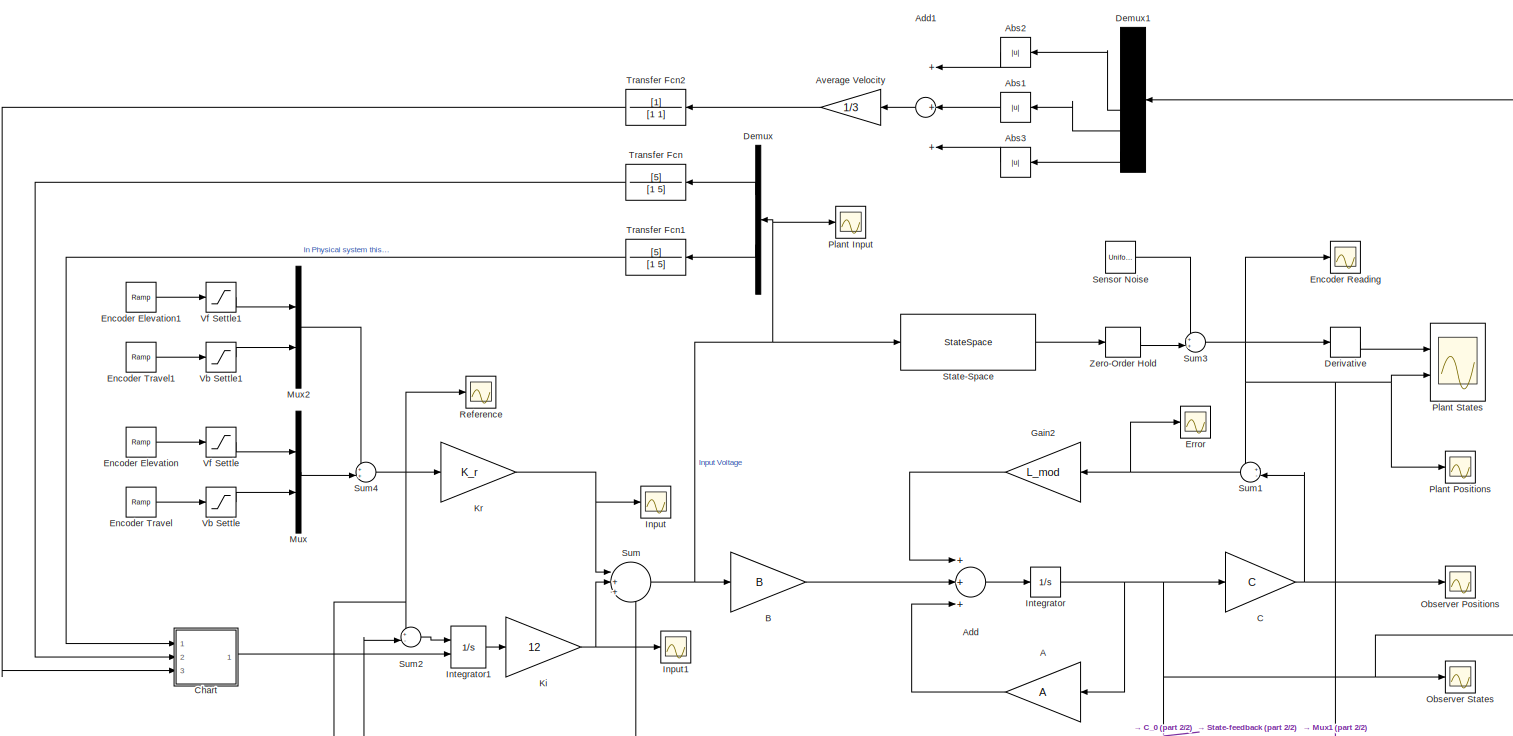
[diagram: root canvas - part 1/2, full width, middle band]
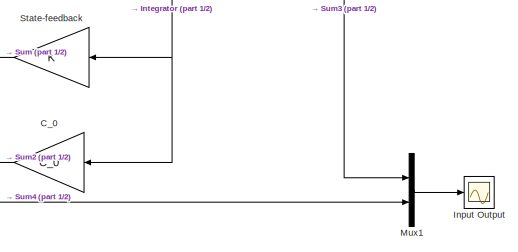
[diagram: root canvas - part 2/2, bottom right region]
MODEL slx_68eb5c459e60
KIND model
CONFIG AbsTol = auto
CONFIG FixedStep = auto
CONFIG MaxStep = auto
CONFIG MinStep = auto
CONFIG RelTol = 1e-3
CONFIG SampleTimeConstraint = Unconstrained
CONFIG Solver = ode45
CONFIG SolverMode = Auto
CONFIG SolverName = ode45
CONFIG StartTime = 0.0
CONFIG StopTime = 80
BLOCK [Gain] A
  Gain = A
  Multiplication = Matrix(K*u)
  OutDataTypeStr = Inherit: Inherit via internal rule
  ParamDataTypeStr = Inherit: Inherit via internal rule
  SaturateOnIntegerOverflow = off
BLOCK [Abs] Abs1
  SaturateOnIntegerOverflow = off
BLOCK [Abs] Abs2
  SaturateOnIntegerOverflow = off
BLOCK [Abs] Abs3
  SaturateOnIntegerOverflow = off
BLOCK [Sum] Add
  InputSameDT = off
  Inputs = +++
  OutDataTypeStr = Inherit: Inherit via internal rule
  Ports = [3, 1]
  SaturateOnIntegerOverflow = off
BLOCK [Sum] Add1
  InputSameDT = off
  Inputs = +++
  OutDataTypeStr = Inherit: Inherit via internal rule
  Ports = [3, 1]
  SaturateOnIntegerOverflow = off
BLOCK [Gain] Average Velocity
  Gain = 1/3
  OutDataTypeStr = Inherit: Inherit via internal rule
  ParamDataTypeStr = Inherit: Inherit via internal rule
  SaturateOnIntegerOverflow = off
BLOCK [Gain] B
  Gain = B
  Multiplication = Matrix(K*u)
  OutDataTypeStr = Inherit: Inherit via internal rule
  ParamDataTypeStr = Inherit: Inherit via internal rule
  SaturateOnIntegerOverflow = off
BLOCK [Gain] C
  Gain = C
  Multiplication = Matrix(K*u)
  OutDataTypeStr = Inherit: Inherit via internal rule
  ParamDataTypeStr = Inherit: Inherit via internal rule
  SaturateOnIntegerOverflow = off
BLOCK [Gain] C_0
  Gain = C_0
  Multiplication = Matrix(K*u)
  OutDataTypeStr = Inherit: Inherit via internal rule
  ParamDataTypeStr = Inherit: Inherit via internal rule
  SaturateOnIntegerOverflow = off
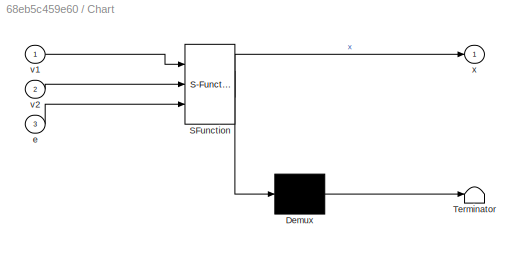
BLOCK [SubSystem] Chart
  ErrorFcn = Stateflow.Translate.translate
  PermitHierarchicalResolution = ExplicitOnly
  Ports = [3, 1]
  RequestExecContextInheritance = off
  SFBlockType = Chart
  TreatAsAtomicUnit = on
BLOCK [Demux] Chart/ Demux 
  Outputs = 1
  Ports = [1, 1]
BLOCK [S-Function] Chart/ SFunction 
  EnableBusSupport = on
  FunctionName = sf_sfun
  PortCounts = [3 2]
  Ports = [3, 2]
  Tag = Stateflow S-Function Helicopter_Simulink_Model 3
BLOCK [Terminator] Chart/ Terminator 
BLOCK [Inport] Chart/e
  IconDisplay = Port number
  Port = 3
BLOCK [Inport] Chart/v1
  IconDisplay = Port number
BLOCK [Inport] Chart/v2
  IconDisplay = Port number
  Port = 2
BLOCK [Outport] Chart/x
  IconDisplay = Port number
BLOCK [Demux] Demux
  DisplayOption = bar
  Outputs = 2
  Ports = [1, 2]
BLOCK [Demux] Demux1
  DisplayOption = bar
  Outputs = 6
  Ports = [1, 6]
BLOCK [Derivative] Derivative
BLOCK [Reference] Encoder Elevation  REF=simulink/Sources/Ramp
  Ports = [0, 1]
  SourceBlock = simulink/Sources/Ramp
  SourceType = Ramp
  VectorParams1D = on
  X0 = 0.4995
  slope = -0.125
  start = 30
BLOCK [Reference] Encoder Elevation1  REF=simulink/Sources/Ramp
  Ports = [0, 1]
  SourceBlock = simulink/Sources/Ramp
  SourceType = Ramp
  VectorParams1D = on
  X0 = 0
  slope = 0.125
  start = 0
BLOCK [Scope] Encoder Reading
  Floating = off
  LimitDataPoints = off
  NumInputPorts = 1
  Ports = [1]
  SaveName = ScopeData6
BLOCK [Reference] Encoder Travel  REF=simulink/Sources/Ramp
  Ports = [0, 1]
  SourceBlock = simulink/Sources/Ramp
  SourceType = Ramp
  VectorParams1D = on
  X0 = 0
  slope = 0
  start = 0
BLOCK [Reference] Encoder Travel1  REF=simulink/Sources/Ramp
  Ports = [0, 1]
  SourceBlock = simulink/Sources/Ramp
  SourceType = Ramp
  VectorParams1D = on
  X0 = 0
  slope = 0
  start = 0
BLOCK [Scope] Error
  Floating = off
  LimitDataPoints = off
  NumInputPorts = 1
  Ports = [1]
  SaveName = ScopeData3
BLOCK [Gain] Gain2
  Gain = L_mod
  Multiplication = Matrix(K*u)
  OutDataTypeStr = Inherit: Inherit via internal rule
  ParamDataTypeStr = Inherit: Inherit via internal rule
  SaturateOnIntegerOverflow = off
BLOCK [Scope] Input
  Floating = off
  NumInputPorts = 1
  Ports = [1]
BLOCK [Scope] Input Output
  Floating = off
  LimitDataPoints = off
  NumInputPorts = 1
  Ports = [1]
  SaveName = ScopeData7
BLOCK [Scope] Input1
  Floating = off
  LimitDataPoints = off
  NumInputPorts = 1
  Ports = [1]
  SaveName = ScopeData11
BLOCK [Integrator] Integrator
  Ports = [1, 1]
BLOCK [Integrator] Integrator1
  ExternalReset = rising
  Ports = [2, 1]
BLOCK [Gain] Ki
  Gain = 12
  Multiplication = Matrix(K*u)
  OutDataTypeStr = Inherit: Inherit via internal rule
  ParamDataTypeStr = Inherit: Inherit via internal rule
  SaturateOnIntegerOverflow = off
BLOCK [Gain] Kr
  Gain = K_r
  Multiplication = Matrix(K*u)
  OutDataTypeStr = Inherit: Inherit via internal rule
  ParamDataTypeStr = Inherit: Inherit via internal rule
  SaturateOnIntegerOverflow = off
BLOCK [Mux] Mux
  DisplayOption = bar
  Inputs = 2
  Ports = [2, 1]
BLOCK [Mux] Mux1
  DisplayOption = bar
  Inputs = 2
  Ports = [2, 1]
BLOCK [Mux] Mux2
  DisplayOption = bar
  Inputs = 2
  Ports = [2, 1]
BLOCK [Scope] Observer Positions
  Floating = off
  LimitDataPoints = off
  NumInputPorts = 1
  Ports = [1]
  SaveName = ScopeData4
BLOCK [Scope] Observer States
  Floating = off
  LimitDataPoints = off
  NumInputPorts = 1
  Ports = [1]
  SaveName = ScopeData2
BLOCK [Scope] Plant Input
  Floating = off
  LimitDataPoints = off
  NumInputPorts = 1
  Ports = [1]
  SaveName = ScopeData9
BLOCK [Scope] Plant Positions
  Floating = off
  LimitDataPoints = off
  NumInputPorts = 1
  Ports = [1]
  SaveName = ScopeData5
BLOCK [Scope] Plant States
  Floating = off
  LimitDataPoints = off
  NumInputPorts = 2
  Ports = [2]
  SaveName = ScopeData1
  YMax = 5~5
  YMin = -5~-5
BLOCK [Scope] Reference
  Floating = off
  NumInputPorts = 1
  Ports = [1]
  SaveName = ScopeData8
BLOCK [UniformRandomNumber] Sensor Noise
  Maximum = 0.0002
  Minimum = -0.0002
  SampleTime = 0.012
BLOCK [StateSpace] State-Space
  A = A
  B = B
  C = C
  D = D
  Ports = [1, 1]
  X0 = 0
BLOCK [Gain] State-feedback
  Gain = K
  Multiplication = Matrix(K*u)
  OutDataTypeStr = Inherit: Inherit via internal rule
  ParamDataTypeStr = Inherit: Inherit via internal rule
  SaturateOnIntegerOverflow = off
BLOCK [Sum] Sum
  IconShape = round
  InputSameDT = off
  Inputs = |++-
  OutDataTypeStr = Inherit: Inherit via internal rule
  Ports = [3, 1]
  SaturateOnIntegerOverflow = off
BLOCK [Sum] Sum1
  IconShape = round
  InputSameDT = off
  Inputs = +-|
  OutDataTypeStr = Inherit: Inherit via internal rule
  Ports = [2, 1]
  SaturateOnIntegerOverflow = off
BLOCK [Sum] Sum2
  IconShape = round
  InputSameDT = off
  Inputs = +-|
  OutDataTypeStr = Inherit: Inherit via internal rule
  Ports = [2, 1]
  SaturateOnIntegerOverflow = off
BLOCK [Sum] Sum3
  IconShape = round
  InputSameDT = off
  Inputs = ++|
  OutDataTypeStr = Inherit: Inherit via internal rule
  Ports = [2, 1]
  SaturateOnIntegerOverflow = off
BLOCK [Sum] Sum4
  IconShape = round
  InputSameDT = off
  Inputs = ++|
  OutDataTypeStr = Inherit: Inherit via internal rule
  Ports = [2, 1]
  SaturateOnIntegerOverflow = off
BLOCK [TransferFcn] Transfer Fcn
  Denominator = [1 5]
  Numerator = [5]
BLOCK [TransferFcn] Transfer Fcn1
  Denominator = [1 5]
  Numerator = [5]
BLOCK [TransferFcn] Transfer Fcn2
  Denominator = [1 1]
BLOCK [Saturate] Vb Settle
  InputPortMap = u0
  LowerLimit = -1
  Ports = [1, 1]
  UpperLimit = 0.4995
BLOCK [Saturate] Vb Settle1
  InputPortMap = u0
  LowerLimit = -1
  Ports = [1, 1]
  UpperLimit = 0.4995
BLOCK [Saturate] Vf Settle
  InputPortMap = u0
  LowerLimit = -0.4995
  Ports = [1, 1]
  UpperLimit = 0
BLOCK [Saturate] Vf Settle1
  InputPortMap = u0
  LowerLimit = -1
  Ports = [1, 1]
  UpperLimit = 0.4995
BLOCK [ZeroOrderHold] Zero-Order Hold
  SampleTime = 0.012
LINE A:1 -> Add:3
LINE Abs1:1 -> Add1:2
LINE Abs2:1 -> Add1:1
LINE Abs3:1 -> Add1:3
LINE Add1:1 -> Average Velocity:1
LINE Add:1 -> Integrator:1
LINE Average Velocity:1 -> Transfer Fcn2:1
LINE B:1 -> Add:2
NET C:1 -> Observer Positions:1, Sum1:2
LINE C_0:1 -> Sum2:2
LINE Chart:1 -> Integrator1:2
LINE Demux1:4 -> Abs2:1
LINE Demux1:5 -> Abs1:1
LINE Demux1:6 -> Abs3:1
LINE Demux:1 -> Transfer Fcn:1
LINE Demux:2 -> Transfer Fcn1:1
LINE Derivative:1 -> Plant States:1
LINE Encoder Elevation1:1 -> Vf Settle1:1
LINE Encoder Elevation:1 -> Vf Settle:1
LINE Encoder Travel1:1 -> Vb Settle1:1
LINE Encoder Travel:1 -> Vb Settle:1
LINE Gain2:1 -> Add:1
LINE Integrator1:1 -> Ki:1
NET Integrator:1 -> A:1, C:1, C_0:1, Demux1:1, Observer States:1, State-feedback:1
NET Ki:1 -> Input1:1, Sum:2
NET Kr:1 -> Input:1, Sum:1
LINE Mux1:1 -> Input Output:1
LINE Mux2:1 -> Sum4:1
LINE Mux:1 -> Sum4:2
LINE Sensor Noise:1 -> Sum3:1
LINE State-Space:1 -> Zero-Order Hold:1
LINE State-feedback:1 -> Sum:3
NET Sum1:1 -> Error:1, Gain2:1
LINE Sum2:1 -> Integrator1:1
NET Sum3:1 -> Derivative:1, Encoder Reading:1, Mux1:1, Plant Positions:1, Plant States:2, Sum1:1
NET Sum4:1 -> Kr:1, Mux1:2, Reference:1, Sum2:1
NET Sum:1 -> B:1, Demux:1, Plant Input:1, State-Space:1
LINE Transfer Fcn1:1 -> Chart:1
LINE Transfer Fcn2:1 -> Chart:3
LINE Transfer Fcn:1 -> Chart:2
LINE Vb Settle1:1 -> Mux2:2
LINE Vb Settle:1 -> Mux:2
LINE Vf Settle1:1 -> Mux2:1
LINE Vf Settle:1 -> Mux:1
LINE Zero-Order Hold:1 -> Sum3:2
note: NET lines group one-source signal fan-out (src -> all destinations, sorted); 1:1 wires keep LINE
CHART Chart states=2 transitions=3
  STATE_LABEL 'Reset\nentry:\nx=0;'
  STATE_LABEL 'No_Reset\nentry:\nx=1;'
